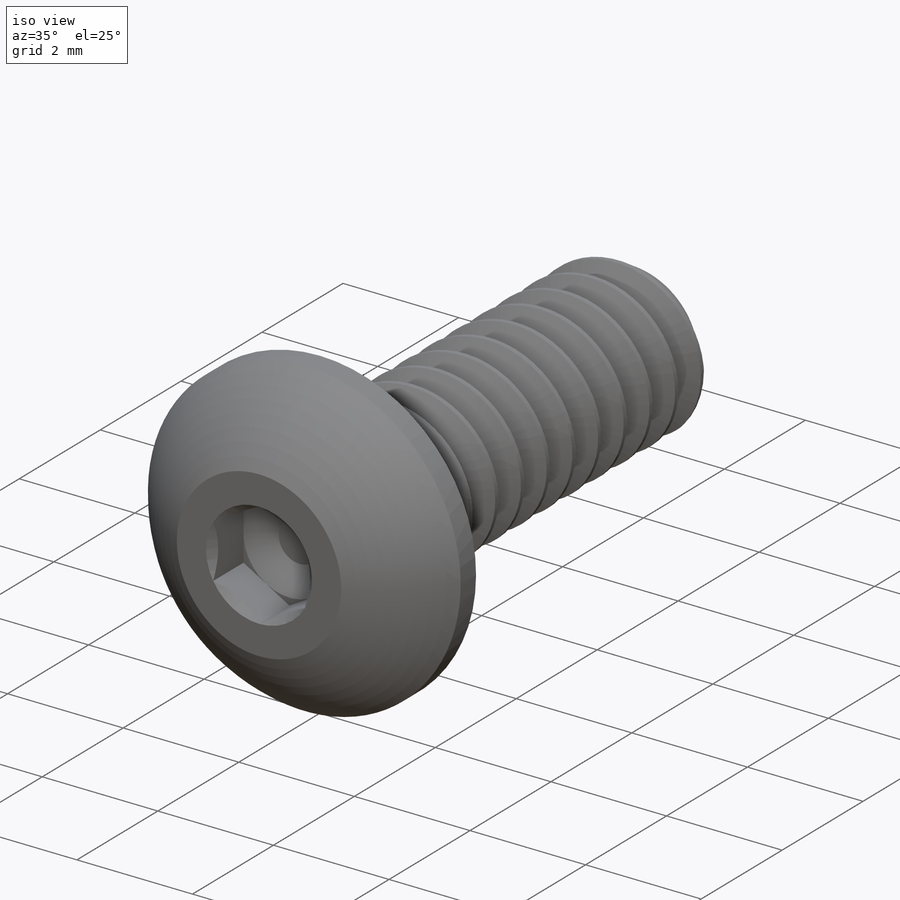
[diagram: iso view]
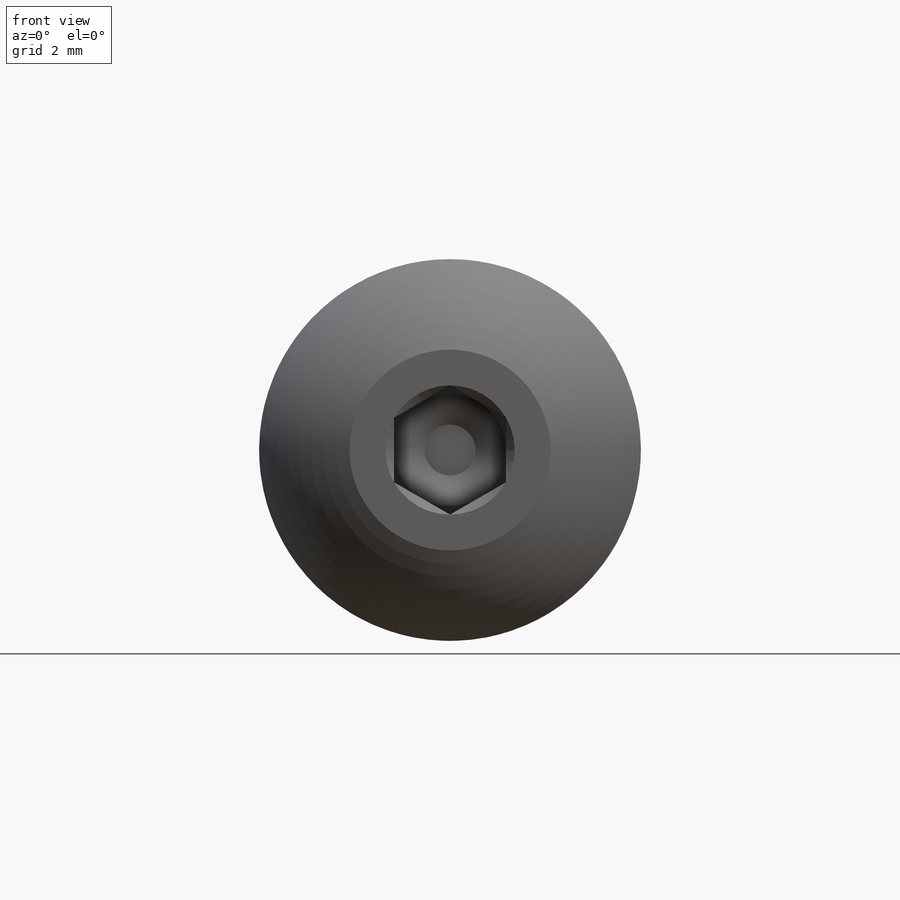
[diagram: front view]
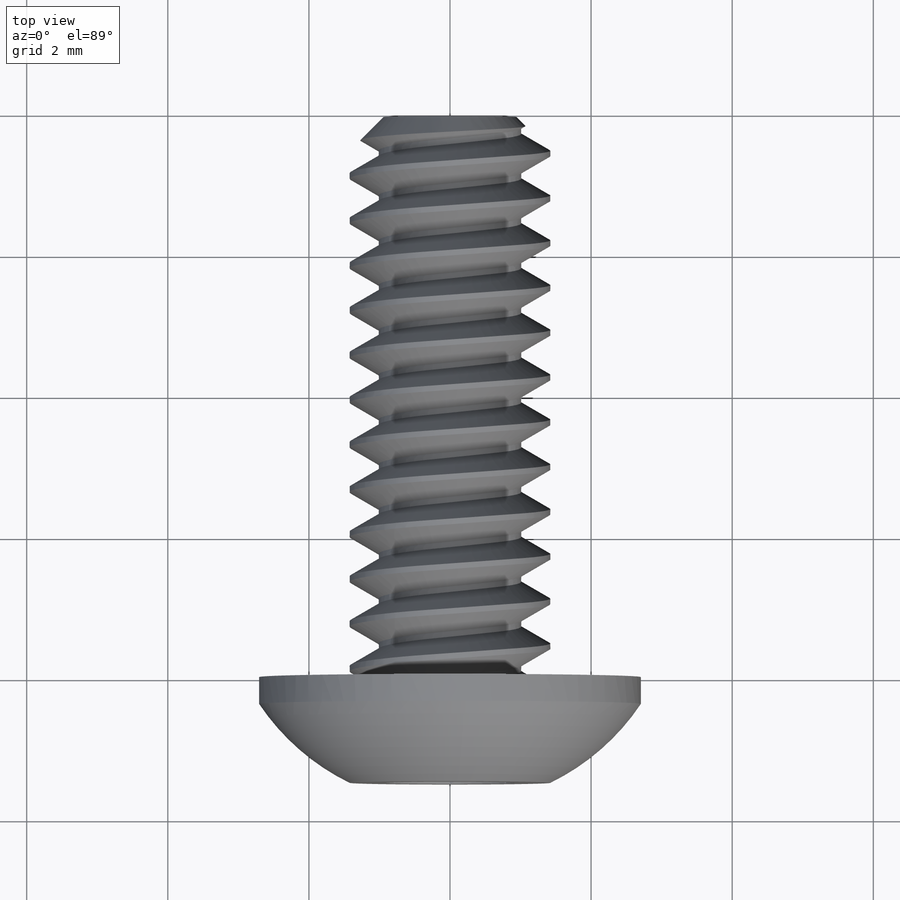
[diagram: top view]
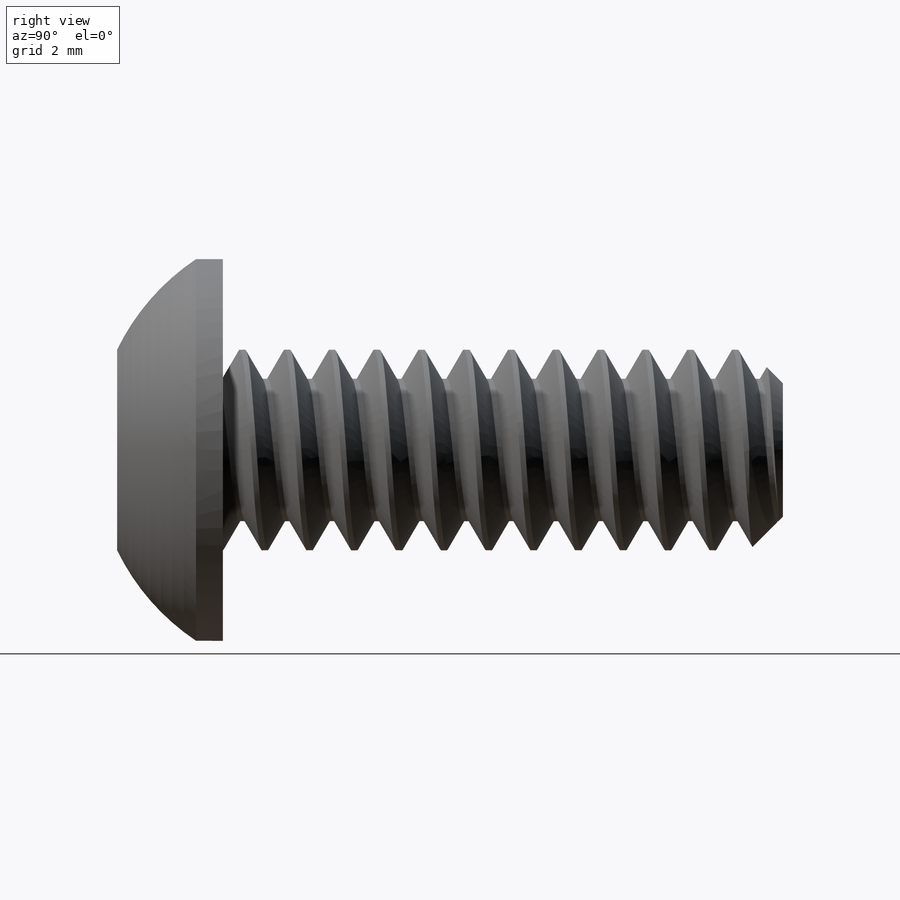
[diagram: right view]
SOLIDWORKS PART (.sldprt)
format: sldprt  version: not decoded by parser v0  size: 680,960 bytes
history: native  units: mm
features: sketch x9, cut_extrude x3, material x1, revolve x1, plane x1, chamfer x1, helix x1, sweep x1, extrude x1, cut_revolve x1 (+14 scaffold rows collapsed)
feature tree (34):
  scaffold x14  (default folders/planes/origin — collapsed)
  material  "Material <not specified>"
  sketch  "Sketch1"  dims[c1.Thread Dia=2.8448mm c1.Screw Length=228.6mm c1.Length=22.225mm c1.Head Height=1.4986mm c1.D1=7.9375mm c1.D2=90.0deg c2.Length=7.9375mm c2.D2=1.27mm]
  revolve  "Revolve1"  Angle=360deg
  plane  "Plane1"
  chamfer  "Chamfer1"  Distance=0.47625mm Angle=45deg
  sketch  "Sketch10"  dims[c1.D1=~0.587625mm c2.D1=60.0deg c2.D2=~0.079375mm c2.D3=0.3175mm]
  sketch  "Sketch11"  dims[D1=0.0mm]
  helix  "Helix/Spiral1"  Pitch=11.1125mm
  sweep  "Cut-Sweep1"
  sketch  "Sketch4"  dims[Head Dia=5.4102mm]
  extrude  "Extrude1"  [1 undecoded]
  sketch  "Sketch9"  dims[c1.D2=~0.770447mm c1.D4=0.127mm c1.D1=~9.560296mm c2.D1=82.0deg c2.D2=0.508mm c2.D3=0.508mm c2.Side Head Height=0.381mm]
  cut_revolve  "Cut-Revolve3"  Angle=360deg
  sketch  "Sketch6"  dims[Hex=1.5875mm]
  cut_extrude  "Cut-Extrude1"  Depth=0.7493mm
  sketch  "Sketch7"
  cut_extrude  "Cut-Extrude4"  Depth=0.7493mm
  sketch  "Sketch8"
  cut_extrude  "Cut-Extrude5"  Depth=0.249767mm
  sketch  "Sketch12"
decode coverage: 13 of 18 modeling features carry decoded parameters
note: ~ marks probable driven/reference dimensions
note: 1 parameter value undecoded
note: suppression state not decoded; provenance and decode notes live in map.json
